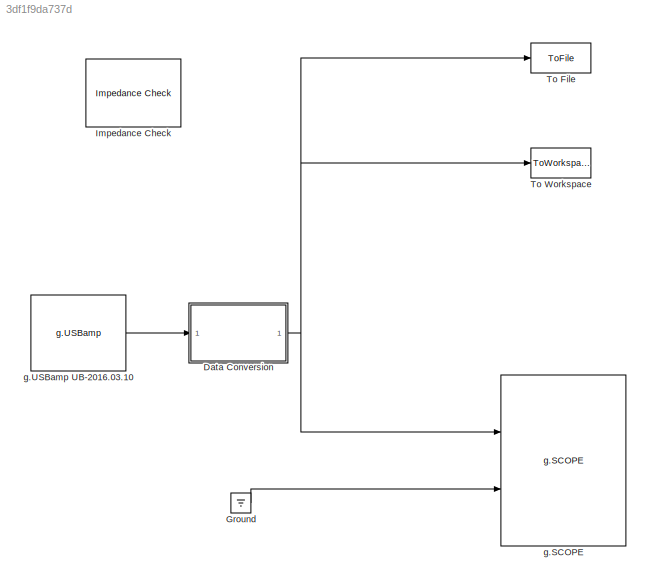
MODEL slx_3df1f9da737d
KIND model
CONFIG StartFcn = simulinkModelStartFcn('SimpleAcquisition_16ch_2014a_RT_preProc')
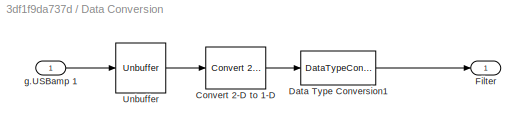
BLOCK [SubSystem] Data Conversion 
  Ports = [1, 1]
  RequestExecContextInheritance = off
BLOCK [Reference] Data Conversion /Convert 2-D to 1-D  REF=dspsigattribs/Convert 2-D to 1-D
  Ports = [1, 1]
  SourceBlock = dspsigattribs/Convert 2-D to 1-D
  SourceType = Convert 2-D to 1-D
BLOCK [DataTypeConversion] Data Conversion /Data Type Conversion1
  OutDataTypeStr = double
  RndMeth = Floor
  SaturateOnIntegerOverflow = off
BLOCK [Outport] Data Conversion /Filter
  IconDisplay = Port number
BLOCK [Unbuffer] Data Conversion /Unbuffer
  Ports = [1, 1]
  SampleBasedProcessing = Same as frame based
BLOCK [Inport] Data Conversion /g.USBamp 1
  IconDisplay = Port number
  Priority = 2
BLOCK [Ground] Ground
BLOCK [Reference] Impedance Check  REF=Tools/Impedance Check
  Ports = []
  SourceBlock = Tools/Impedance Check
  SourceType = g.USBamp Impedance Check
BLOCK [ToFile] To File
  Filename = tempEEGdata.mat
  Ports = [1]
  SaveFormat = Timeseries
BLOCK [ToWorkspace] To Workspace
  FixptAsFi = on
  MaxDataPoints = inf
  Ports = [1]
  SampleTime = -1
  Save2DSignal = 3-D array (concatenate along third dimension)
  SaveFormat = Timeseries
  VariableName = rawData
BLOCK [Reference] g.SCOPE  REF=gtecHighspeedLib/g.SCOPE
  Ports = [2]
  SourceBlock = gtecHighspeedLib/g.SCOPE
  SourceType = g.SCOPE
  UserDataPersistent = on
BLOCK [Reference] g.USBamp UB-2016.03.10  REF=gUSBamplib/g.USBamp
  Ports = [4, 1]
  Priority = 1
  SourceBlock = gUSBamplib/g.USBamp
  SourceType = g.USBamp
  cfg = currentCFG_SimpleAcquisition_16ch_2014a_RT_preProc_UB-2016.03.10.cfg
  snr = UB-2016.03.10
LINE Data Conversion /Convert 2-D to 1-D:1 -> Data Conversion /Data Type Conversion1:1
LINE Data Conversion /Data Type Conversion1:1 -> Data Conversion /Filter:1
LINE Data Conversion /Unbuffer:1 -> Data Conversion /Convert 2-D to 1-D:1
LINE Data Conversion /g.USBamp 1:1 -> Data Conversion /Unbuffer:1
NET Data Conversion :1 -> To File:1, To Workspace:1, g.SCOPE:1
LINE Ground:1 -> g.SCOPE:2
LINE g.USBamp UB-2016.03.10:1 -> Data Conversion :1
note: NET lines group one-source signal fan-out (src -> all destinations, sorted); 1:1 wires keep LINE
